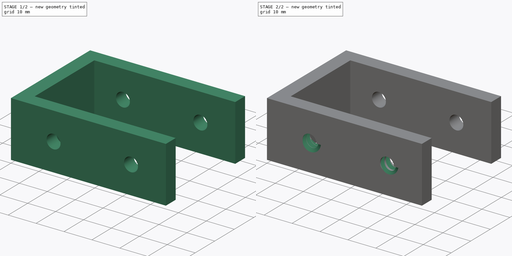
[diagram: build sequence overview — one tinted view per stage of 2, left to right]
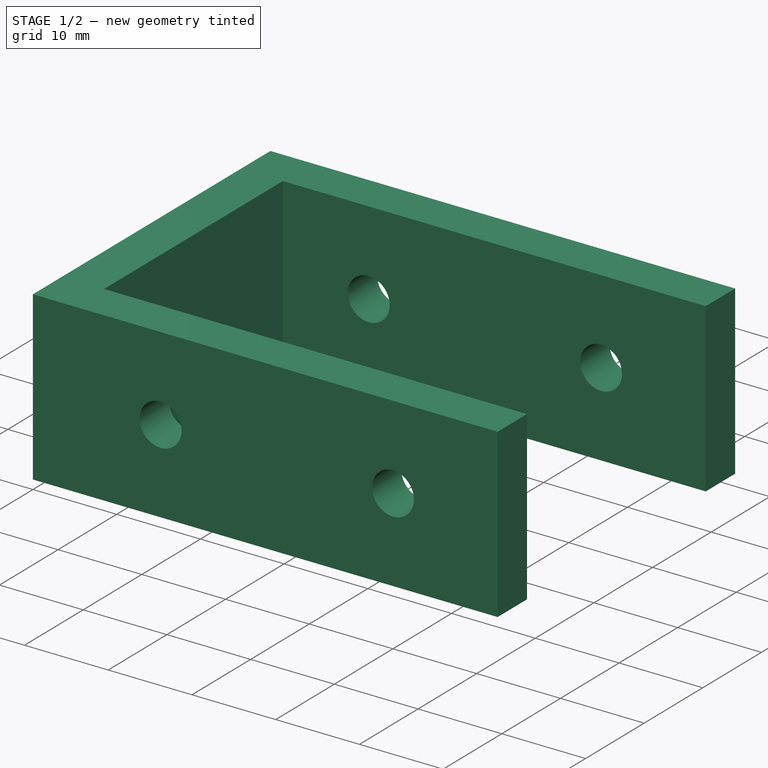
[diagram: stage 1 of 2 — iso view after this stage's code; geometry added in this stage tinted green]
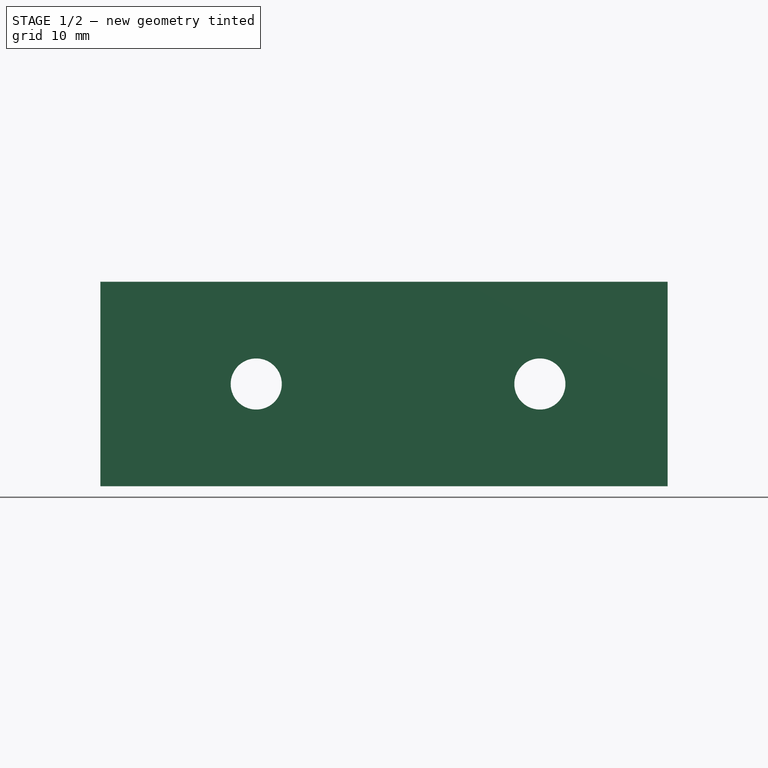
[diagram: stage 1 of 2 — front view after this stage's code; geometry added in this stage tinted green]
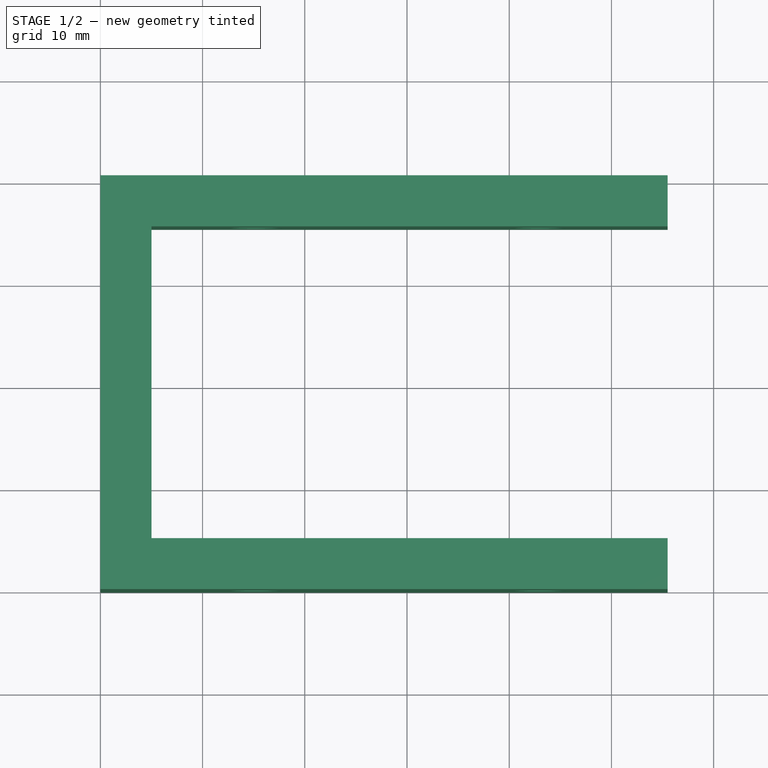
[diagram: stage 1 of 2 — top view after this stage's code; geometry added in this stage tinted green]
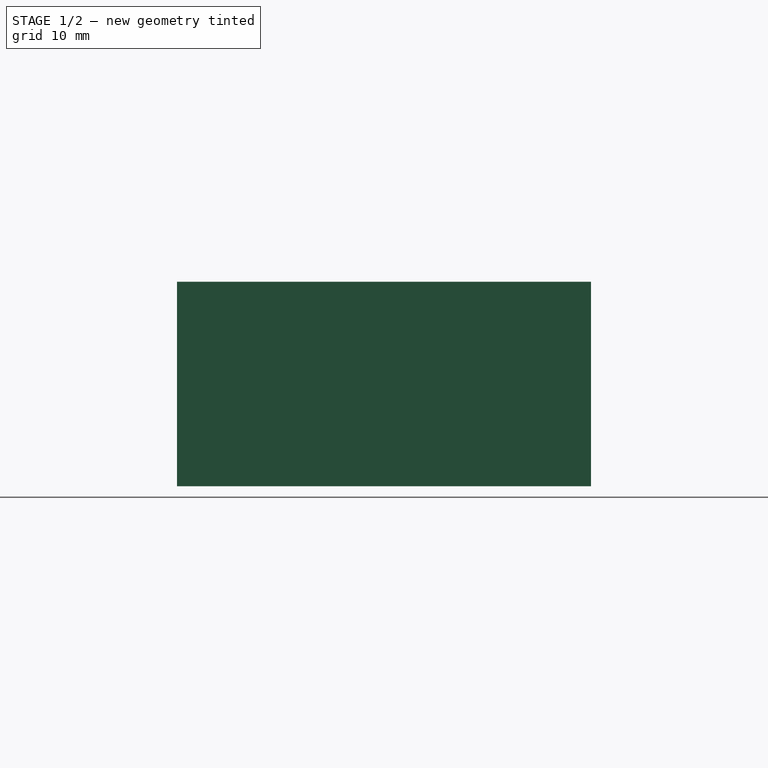
[diagram: stage 1 of 2 — right view after this stage's code; geometry added in this stage tinted green]
FCSTD DOCUMENT  (FreeCAD 0.20R29177 (Git))
Label: tableLegAttacher
License: All rights reserved
LicenseURL: http://en.wikipedia.org/wiki/All_rights_reserved
objects: Sketcher::SketchObject×4, PartDesign::SubtractiveHelix×2, Spreadsheet::Sheet×1, PartDesign::Pad×1, PartDesign::Pocket×1, PartDesign::Body×1
note: 13 computed .brp shape members not serialized (recipe doc carries the construction recipe); baked Part::Feature solids carry a one-line shape summary decoded from their .brp

FEATURE [Sketcher::SketchObject] Sketch
  FullyConstrained = true
  MapMode = 5
  Support = -> [XY_Plane]
  expr: Constraints[17] = Spreadsheet.bracketSize
  expr: Constraints[18] = Spreadsheet.thickness
  expr: Constraints[19] = Spreadsheet.thickness
  expr: Constraints[20] = Spreadsheet.thickness
  expr: Constraints[21] = Spreadsheet.bracketSize + Spreadsheet.extend
  sketch-geometry (8):
    g0: LineSegment StartX=0 StartY=0 StartZ=0 EndX=55.5 EndY=0 EndZ=0
    g1: LineSegment StartX=0 StartY=0 StartZ=0 EndX=0 EndY=40.5 EndZ=0
    g2: LineSegment StartX=0 StartY=40.5 StartZ=0 EndX=55.5 EndY=40.5 EndZ=0
    g3: LineSegment StartX=55.5 StartY=40.5 StartZ=0 EndX=55.5 EndY=35.5 EndZ=0
    g4: LineSegment StartX=55.5 StartY=35.5 StartZ=0 EndX=5 EndY=35.5 EndZ=0
    g5: LineSegment StartX=5 StartY=35.5 StartZ=0 EndX=5 EndY=5 EndZ=0
    g6: LineSegment StartX=5 StartY=5 StartZ=0 EndX=55.5 EndY=5 EndZ=0
    g7: LineSegment StartX=55.5 StartY=5 StartZ=0 EndX=55.5 EndY=0 EndZ=0
  constraints (23):
    c: Coincident(g0,g-1)
    c: PointOnObject(g0,g-1)
    c: Coincident(g1,g0)
    c: PointOnObject(g1,g-2)
    c: Coincident(g2,g1)
    c: Horizontal(g2)
    c: Coincident(g3,g2)
    c: Vertical(g3)
    c: Coincident(g4,g3)
    c: Horizontal(g4)
    c: Coincident(g5,g4)
    c: Vertical(g5)
    c: Coincident(g6,g5)
    c: Horizontal(g6)
    c: Coincident(g7,g6)
    c: Vertical(g7)
    c: Coincident(g7,g0)
    c: DistanceY(g5,g5) = 30.5
    c: DistanceY(g3,g3) = 5
    c: DistanceY(g7,g7) = 5
    c: DistanceX(g0,g5) = 5
    c: DistanceX(g0,g0) = 55.5
    c: Equal(g2,g0)
FEATURE [Spreadsheet::Sheet] Spreadsheet
  cells = A2=bracketSize; B2(bracketSize)=30.5; A3=bracketHeight; B3(bracketHeight)=20; A4=extend; B4(extend)=25; A5=thickness; B5(thickness)=5; A6=secondScrewCenter; B6(secondScrewCenter)==B2 + B4 / 2; C6=Spreadsheet.bracketSize + Spreadsheet.extend / 2
FEATURE [PartDesign::Pad] Pad
  Direction = (0,0,1)
  Length = 20
  Length2 = 10
  Profile = -> Sketch
  ReferenceAxis = -> Sketch [N_Axis]
  Type = 0
  expr: Length = Spreadsheet.bracketHeight
FEATURE [Sketcher::SketchObject] Sketch001
  ExternalGeometry = -> [Pad]
  FullyConstrained = false
  MapMode = 5
  Placement = pos=(0,0,0) rot=(1,0,0;1.5708rad)
  Support = -> [Pad]
  expr: Constraints[4] = Spreadsheet.bracketSize / 2
  expr: Constraints[5] = Spreadsheet.bracketSize + Spreadsheet.extend / 2
  sketch-geometry (3):
    g0: LineSegment StartX=0 StartY=10 StartZ=0 EndX=53.9961 EndY=10 EndZ=0
    g1: Circle CenterX=15.25 CenterY=10 CenterZ=0 NormalX=0 NormalY=0 NormalZ=1 AngleXU=0 Radius=2.5
    g2: Circle CenterX=43 CenterY=10 CenterZ=0 NormalX=0 NormalY=0 NormalZ=1 AngleXU=0 Radius=2.5
  constraints (8):
    c: Horizontal(g0)
    c: Symmetric(g-3,g-3,g0)
    c: PointOnObject(g1,g0)
    c: PointOnObject(g2,g0)
    c: DistanceX(g-3,g1) = 15.25
    c: DistanceX(g-3,g2) = 43
    c: Equal(g1,g2)
    c: Radius(g1) = 2.5
FEATURE [PartDesign::Pocket] Pocket
  BaseFeature = -> Pad
  Direction = (0,1,-2e-16)
  Length = 5
  Length2 = 5
  Profile = -> Sketch001
  ReferenceAxis = -> Sketch001 [N_Axis]
  Type = 1
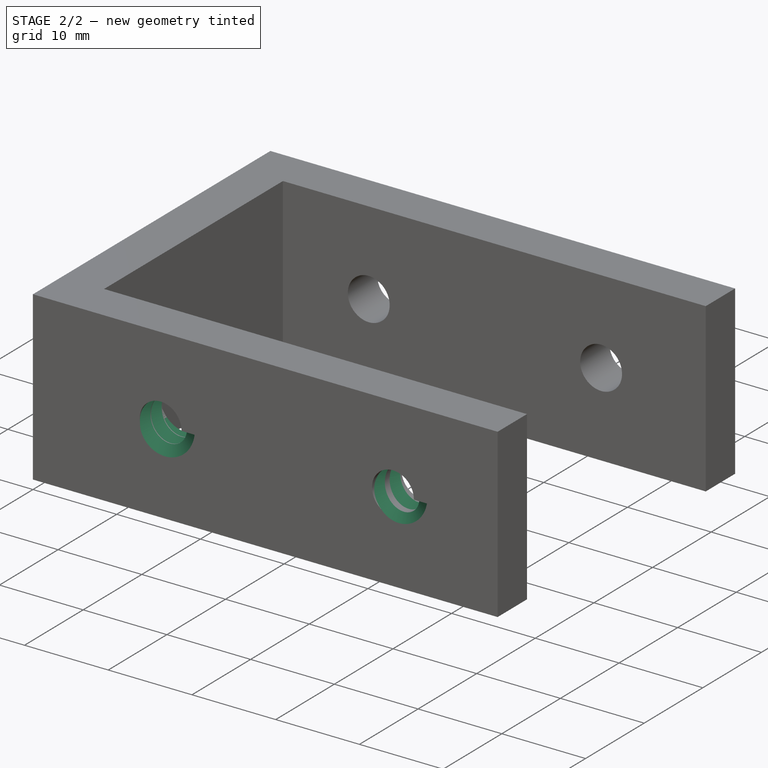
[diagram: stage 2 of 2 — iso view after this stage's code; geometry added in this stage tinted green]
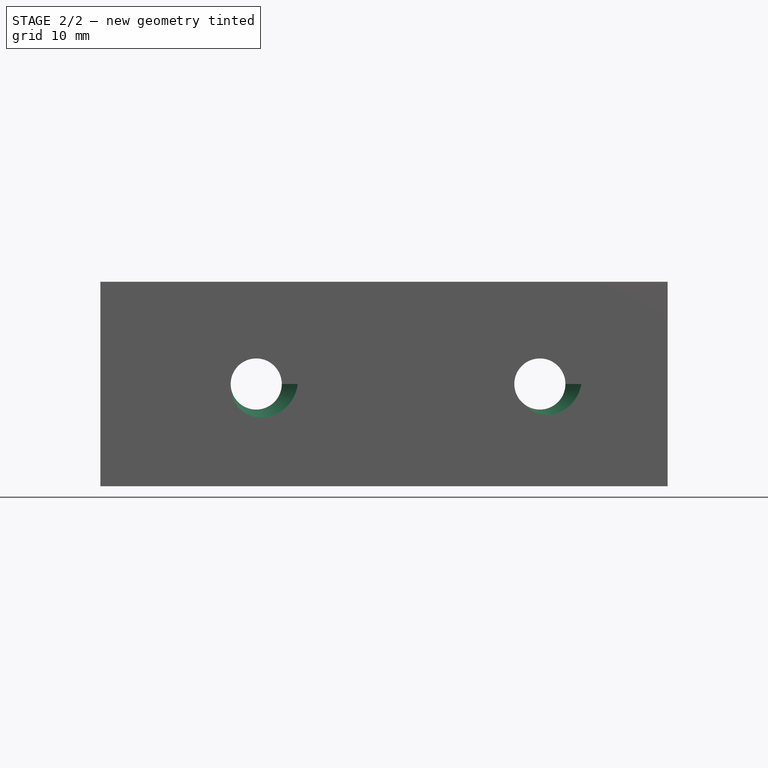
[diagram: stage 2 of 2 — front view after this stage's code; geometry added in this stage tinted green]
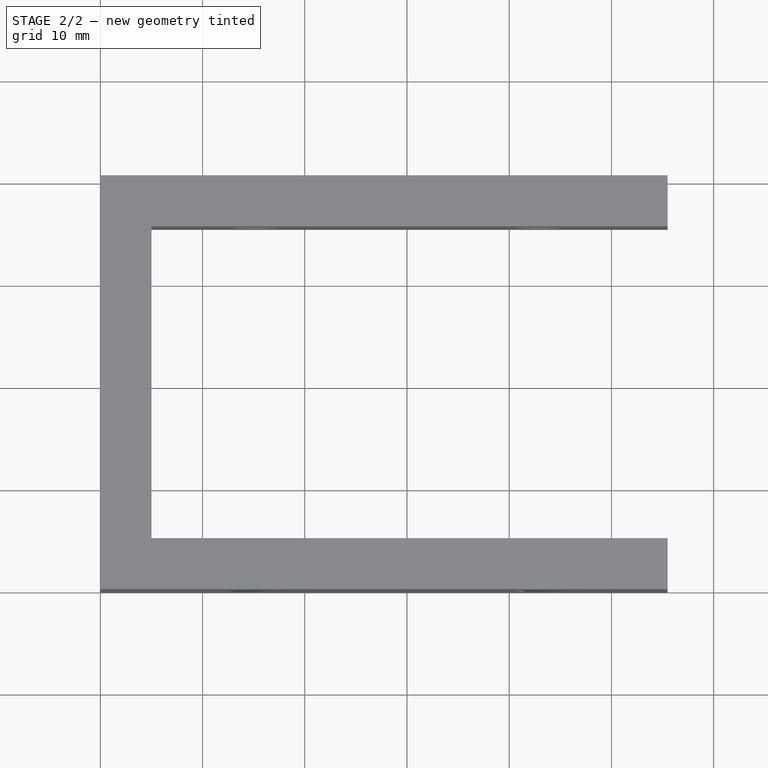
[diagram: stage 2 of 2 — top view after this stage's code; geometry added in this stage tinted green]
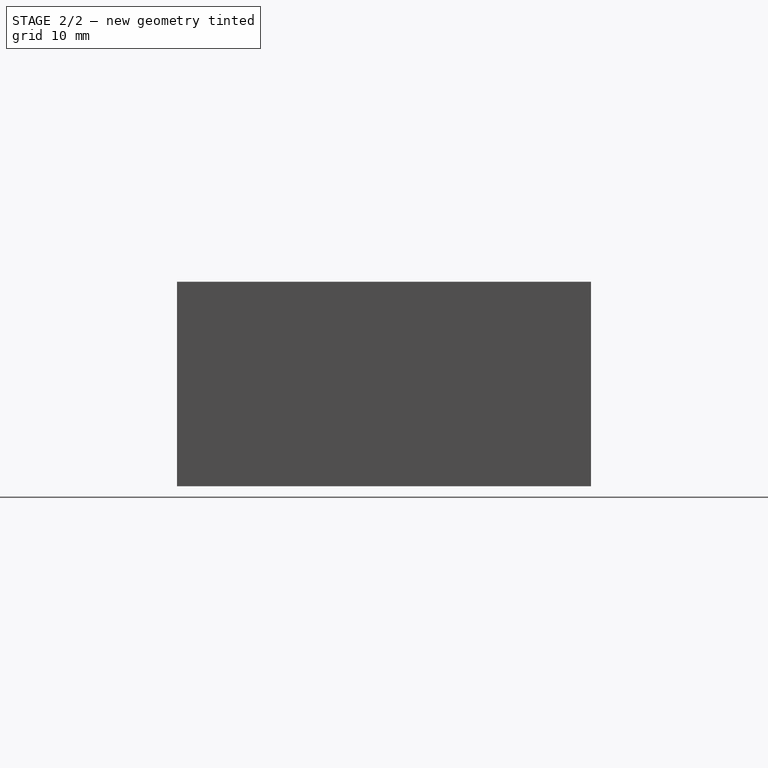
[diagram: stage 2 of 2 — right view after this stage's code; geometry added in this stage tinted green]
FEATURE [Sketcher::SketchObject] SketchTemp_Sketch001_Edge1
  AttachmentOffset = pos=(15.25,10,0) rot=(1,0,0;1.5708rad)
  FullyConstrained = true
  MapMode = 5
  Placement = pos=(15.25,2.2e-15,10) rot=(1,0,0;3.14159rad)
  Support = -> [Pad]
  sketch-geometry (3):
    g0: LineSegment StartX=2.5 StartY=0.9 StartZ=0 EndX=4.05885 EndY=0 EndZ=0
    g1: LineSegment StartX=4.05885 StartY=0 StartZ=0 EndX=2.5 EndY=-0.9 EndZ=0
    g2: LineSegment StartX=2.5 StartY=-0.9 StartZ=0 EndX=2.5 EndY=0.9 EndZ=0
  constraints (9):
    c: Equal(g2,g0)
    c: Equal(g2,g1)
    c: Distance(g2) = 1.8
    c: Coincident(g0,g1)
    c: Coincident(g1,g2)
    c: Coincident(g2,g0)
    c: Parallel(g2,g-2)
    c: PointOnObject(g0,g-1)
    c: DistanceX(g-1,g0) = 2.5
FEATURE [PartDesign::SubtractiveHelix] SubtractiveHelix
  Angle = 0
  Axis = (0,-1,2e-16)
  Base = (15.25,2.2e-15,10)
  BaseFeature = -> Pocket
  Growth = 0
  HasBeenEdited = false
  Height = 6
  LeftHanded = false
  Mode = 0
  Outside = false
  Pitch = 1.9
  Profile = -> SketchTemp_Sketch001_Edge1
  ReferenceAxis = -> SketchTemp_Sketch001_Edge1 [V_Axis]
  Reversed = true
  Turns = 3.15789
FEATURE [Sketcher::SketchObject] SketchTemp_Sketch001_Edge2
  AttachmentOffset = pos=(43,10,0) rot=(1,0,0;1.5708rad)
  FullyConstrained = true
  MapMode = 5
  Placement = pos=(43,2.2e-15,10) rot=(1,0,0;3.14159rad)
  Support = -> [Pad]
  expr: .AttachmentOffset.Base.x = Spreadsheet.secondScrewCenter
  sketch-geometry (3):
    g0: LineSegment StartX=2.5 StartY=0.9 StartZ=0 EndX=4.05885 EndY=0 EndZ=0
    g1: LineSegment StartX=4.05885 StartY=0 StartZ=0 EndX=2.5 EndY=-0.9 EndZ=0
    g2: LineSegment StartX=2.5 StartY=-0.9 StartZ=0 EndX=2.5 EndY=0.9 EndZ=0
  constraints (9):
    c: Equal(g2,g0)
    c: Equal(g2,g1)
    c: Distance(g2) = 1.8
    c: Coincident(g0,g1)
    c: Coincident(g1,g2)
    c: Coincident(g2,g0)
    c: Parallel(g2,g-2)
    c: PointOnObject(g0,g-1)
    c: DistanceX(g-1,g0) = 2.5
FEATURE [PartDesign::SubtractiveHelix] SubtractiveHelix001
  Angle = 0
  Axis = (0,-1,2e-16)
  Base = (43,2.2e-15,10)
  BaseFeature = -> SubtractiveHelix
  Growth = 0
  HasBeenEdited = true
  Height = 7.85788
  LeftHanded = false
  Mode = 0
  Outside = false
  Pitch = 2.61929
  Profile = -> SketchTemp_Sketch001_Edge2
  ReferenceAxis = -> SketchTemp_Sketch001_Edge2 [V_Axis]
  Reversed = true
  Turns = 3
FEATURE [PartDesign::Body] Body
  Group = -> [Sketch,Pad,Sketch001,Pocket,SketchTemp_Sketch001_Edge1,SubtractiveHelix,SketchTemp_Sketch001_Edge2,SubtractiveHelix001]
  Origin = -> Origin
  Tip = -> SubtractiveHelix001
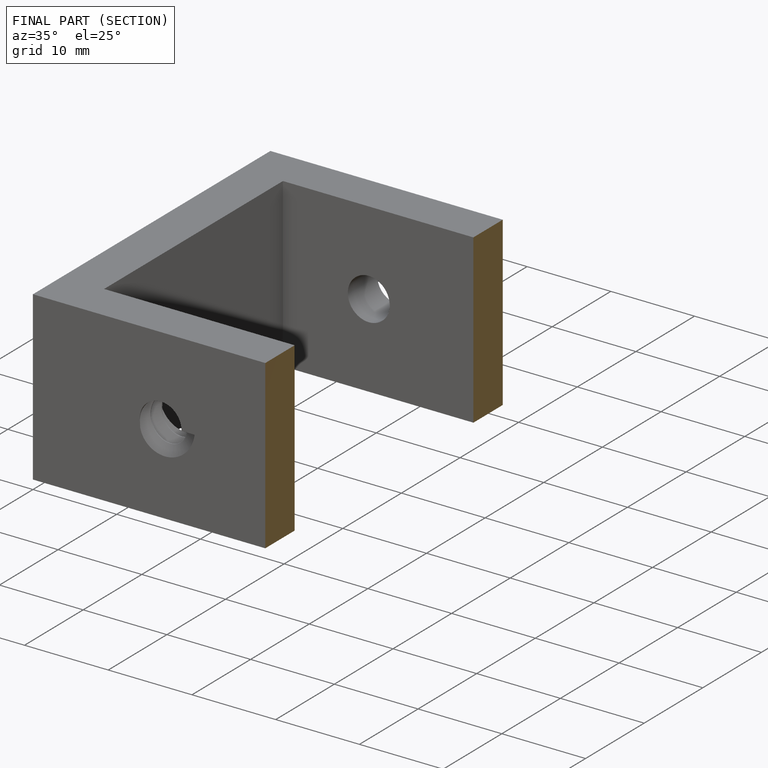
[diagram: finished part — half-section view (interior)]
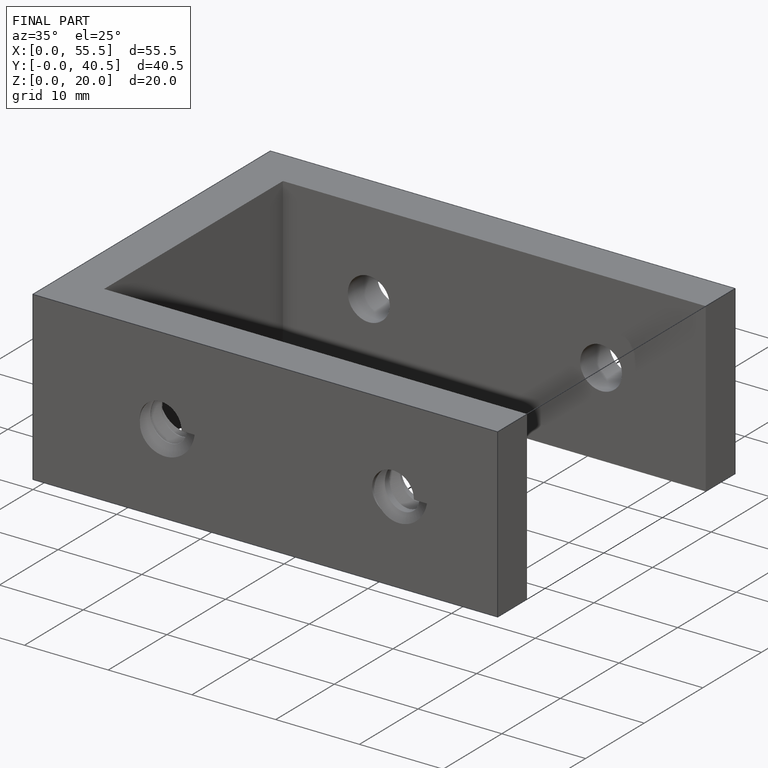
[diagram: finished part — iso view with bounding-box wireframe]
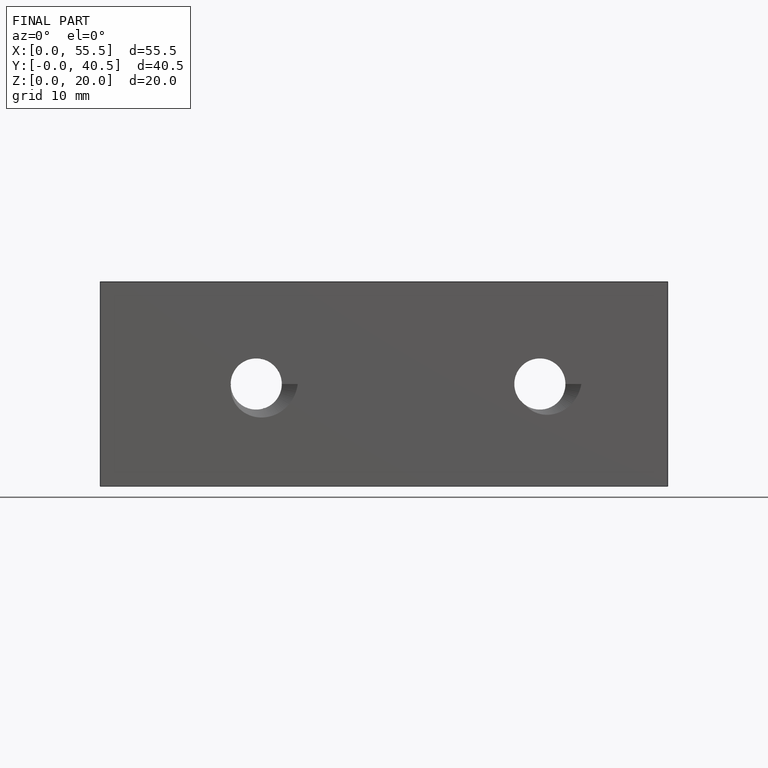
[diagram: finished part — front view with bounding-box wireframe]
